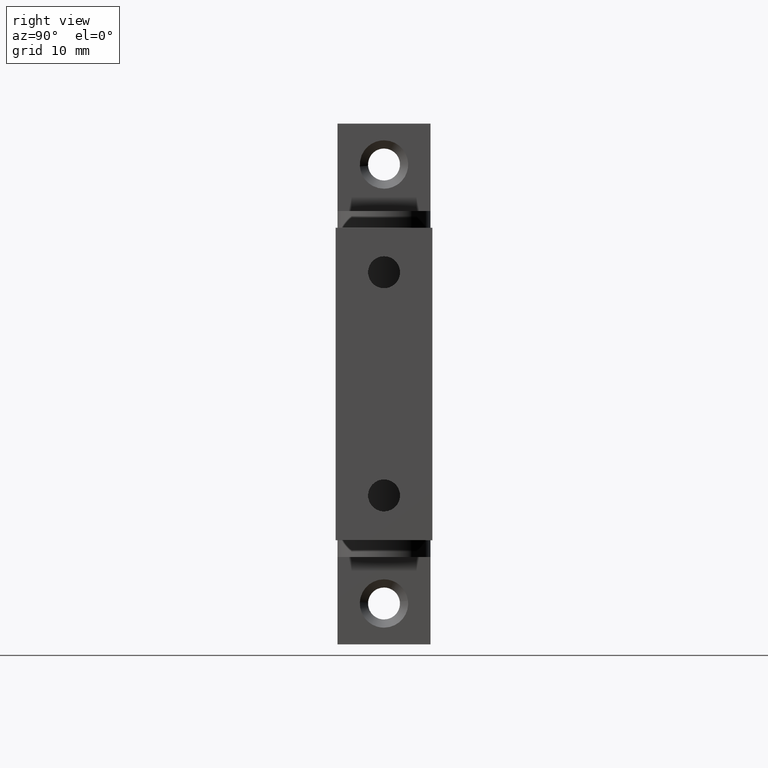
[diagram: clean part render]
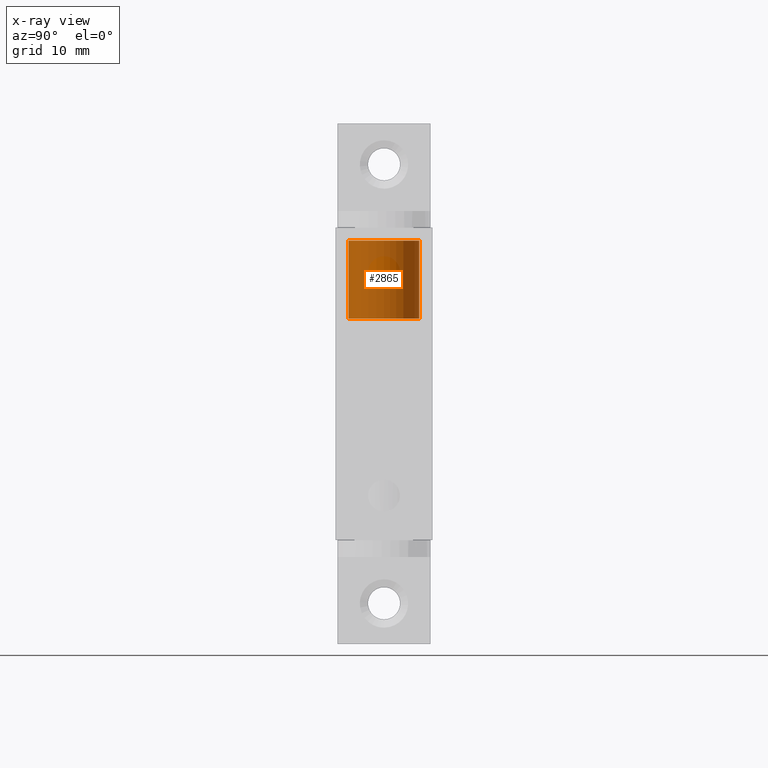
[diagram: x-ray — body ghosted, one internal face saturated and labeled with its STEP entity id]
A machine part, right view, then the same camera in x-ray: the body is ghosted and one INTERNAL B-rep face — a face not visible from any outside direction — is saturated and labeled: STEP entity #2865.
In plain terms, the highlighted face is a freeform B-spline surface patch.
Its self-contained STEP definition (entity closure, byte-faithful):
#2763=CARTESIAN_POINT('',(9.437861957447188,4.729207869306960,19.512075000000010));
#2764=CARTESIAN_POINT('',(9.573209854861631,4.745296018573984,19.512074999999999));
#2765=CARTESIAN_POINT('',(9.709256330465244,4.753616977484140,19.512074999999999));
#2766=CARTESIAN_POINT('',(14.462873307949378,5.044360647018896,19.512075000000006));
#2767=CARTESIAN_POINT('',(14.753616977484141,0.290743669534756,19.512074999999999));
#2768=CARTESIAN_POINT('',(15.044360647018900,-4.462873307949383,19.512075000000006));
#2769=CARTESIAN_POINT('',(10.290743669534759,-4.753616977484140,19.512074999999999));
#2770=CARTESIAN_POINT('',(9.437861957447188,4.729207869306960,8.494170625000002));
#2771=CARTESIAN_POINT('',(9.573209854861631,4.745296018573984,8.494170624999999));
#2772=CARTESIAN_POINT('',(9.709256330465244,4.753616977484140,8.494170624999999));
#2773=CARTESIAN_POINT('',(14.462873307949378,5.044360647018896,8.494170625000001));
#2774=CARTESIAN_POINT('',(14.753616977484141,0.290743669534756,8.494170624999999));
#2775=CARTESIAN_POINT('',(15.044360647018900,-4.462873307949383,8.494170625000001));
#2776=CARTESIAN_POINT('',(10.290743669534759,-4.753616977484140,8.494170624999999));
#2784=(BOUNDED_SURFACE()B_SPLINE_SURFACE(2,1,((#2763,#2770),(#2764,#2771),(#2765,#2772),(#2766,#2773),(#2767,#2774),(#2768,#2775),(#2769,#2776)),.UNSPECIFIED.,.F.,.F.,.U.)B_SPLINE_SURFACE_WITH_KNOTS((3,2,2,3),(2,2),(0.0,0.315630734528299,8.206399097735758,16.097167460943218),(0.0,11.017904375000009),.UNSPECIFIED.)GEOMETRIC_REPRESENTATION_ITEM()RATIONAL_B_SPLINE_SURFACE(((0.977505800795127,0.977505800795127),(0.988284271247462,0.988284271247462),(1.0,1.0),(0.707106781186548,0.707106781186548),(1.0,1.0),(0.707106781186548,0.707106781186548),(1.0,1.0)))REPRESENTATION_ITEM('')SURFACE());
#2785=CARTESIAN_POINT('',(9.437867952261025,4.729208581873751,8.762899999999938));
#2786=VERTEX_POINT('',#2785);
#2787=CARTESIAN_POINT('',(14.762499999999999,0.0,8.762900000000000));
#2788=VERTEX_POINT('',#2787);
#2789=CARTESIAN_POINT('',(9.437867952261025,4.729208581873751,8.762899999999938));
#2790=CARTESIAN_POINT('',(9.717948159252329,4.762500000000000,8.762900000000002));
#2791=CARTESIAN_POINT('',(10.0,4.762500000000000,8.762900000000000));
#2792=CARTESIAN_POINT('',(14.762500000000003,4.762500000000000,8.762900000000000));
#2793=CARTESIAN_POINT('',(14.762499999999999,0.0,8.762900000000000));
#2801=(BOUNDED_CURVE()B_SPLINE_CURVE(2,(#2789,#2790,#2791,#2792,#2793),.UNSPECIFIED.,.F.,.U.)B_SPLINE_CURVE_WITH_KNOTS((3,2,3),(0.229562687746678,0.250000000000000,0.500000000000000),.UNSPECIFIED.)CURVE()GEOMETRIC_REPRESENTATION_ITEM()RATIONAL_B_SPLINE_CURVE((0.956027174089910,0.976056199320916,1.0,0.707106781186548,1.0))REPRESENTATION_ITEM(''));
#2802=EDGE_CURVE('',#2786,#2788,#2801,.T.);
#2803=ORIENTED_EDGE('',*,*,#2802,.T.);
#2804=CARTESIAN_POINT('',(10.290743669569959,-4.753616977481988,8.762899999999998));
#2805=VERTEX_POINT('',#2804);
#2806=CARTESIAN_POINT('',(14.762499999999999,0.0,8.762900000000000));
#2807=CARTESIAN_POINT('',(14.762500000000001,-4.480112643571918,8.762900000000000));
#2808=CARTESIAN_POINT('',(10.290743669569958,-4.753616977481988,8.762899999999998));
#2816=(BOUNDED_CURVE()B_SPLINE_CURVE(2,(#2806,#2807,#2808),.UNSPECIFIED.,.F.,.U.)B_SPLINE_CURVE_WITH_KNOTS((3,3),(0.500000000000000,0.739332962239414),.UNSPECIFIED.)CURVE()GEOMETRIC_REPRESENTATION_ITEM()RATIONAL_B_SPLINE_CURVE((1.0,0.719603993286159,0.976072041667726))REPRESENTATION_ITEM(''));
#2817=EDGE_CURVE('',#2788,#2805,#2816,.T.);
#2818=ORIENTED_EDGE('',*,*,#2817,.T.);
#2819=CARTESIAN_POINT('',(10.290743669569959,-4.753616977481988,19.249900000000000));
#2820=VERTEX_POINT('',#2819);
#2821=CARTESIAN_POINT('',(10.290743669569959,-4.753616977481988,19.249900000000000));
#2822=CARTESIAN_POINT('',(10.290743669569959,-4.753616977481988,8.762899999999998));
#2823=QUASI_UNIFORM_CURVE('',1,(#2821,#2822),.UNSPECIFIED.,.F.,.U.);
#2824=EDGE_CURVE('',#2820,#2805,#2823,.T.);
#2825=ORIENTED_EDGE('',*,*,#2824,.F.);
#2826=CARTESIAN_POINT('',(14.762499999999999,0.0,19.249900000000000));
#2827=VERTEX_POINT('',#2826);
#2828=CARTESIAN_POINT('',(14.762499999999999,0.0,19.249900000000000));
#2829=CARTESIAN_POINT('',(14.762500000000001,-4.480112643571918,19.249900000000004));
#2830=CARTESIAN_POINT('',(10.290743669569958,-4.753616977481988,19.249900000000004));
#2838=(BOUNDED_CURVE()B_SPLINE_CURVE(2,(#2828,#2829,#2830),.UNSPECIFIED.,.F.,.U.)B_SPLINE_CURVE_WITH_KNOTS((3,3),(0.500000000000000,0.739332962239414),.UNSPECIFIED.)CURVE()GEOMETRIC_REPRESENTATION_ITEM()RATIONAL_B_SPLINE_CURVE((1.0,0.719603993286159,0.976072041667726))REPRESENTATION_ITEM(''));
#2839=EDGE_CURVE('',#2827,#2820,#2838,.T.);
#2840=ORIENTED_EDGE('',*,*,#2839,.F.);
#2841=CARTESIAN_POINT('',(9.437867878128140,4.729208573062123,19.249900000000000));
#2842=VERTEX_POINT('',#2841);
#2843=CARTESIAN_POINT('',(9.437867878128140,4.729208573062123,19.249900000000000));
#2844=CARTESIAN_POINT('',(9.717948121794038,4.762500000000000,19.249900000000000));
#2845=CARTESIAN_POINT('',(10.0,4.762500000000000,19.249900000000000));
#2846=CARTESIAN_POINT('',(14.762500000000003,4.762500000000000,19.249899999999997));
#2847=CARTESIAN_POINT('',(14.762499999999999,0.0,19.249900000000000));
#2855=(BOUNDED_CURVE()B_SPLINE_CURVE(2,(#2843,#2844,#2845,#2846,#2847),.UNSPECIFIED.,.F.,.U.)B_SPLINE_CURVE_WITH_KNOTS((3,2,3),(0.229562685097461,0.250000000000000,0.500000000000000),.UNSPECIFIED.)CURVE()GEOMETRIC_REPRESENTATION_ITEM()RATIONAL_B_SPLINE_CURVE((0.956027168897325,0.976056196217165,1.0,0.707106781186548,1.0))REPRESENTATION_ITEM(''));
#2856=EDGE_CURVE('',#2842,#2827,#2855,.T.);
#2857=ORIENTED_EDGE('',*,*,#2856,.F.);
#2858=CARTESIAN_POINT('',(9.437867878128140,4.729208573062123,19.249900000000000));
#2859=CARTESIAN_POINT('',(9.437867952261025,4.729208581873751,8.762899999999938));
#2860=QUASI_UNIFORM_CURVE('',1,(#2858,#2859),.UNSPECIFIED.,.F.,.U.);
#2861=EDGE_CURVE('',#2842,#2786,#2860,.T.);
#2862=ORIENTED_EDGE('',*,*,#2861,.T.);
#2863=EDGE_LOOP('',(#2803,#2818,#2825,#2840,#2857,#2862));
#2864=FACE_OUTER_BOUND('',#2863,.T.);
#2865=ADVANCED_FACE('',(#2864),#2784,.F.);